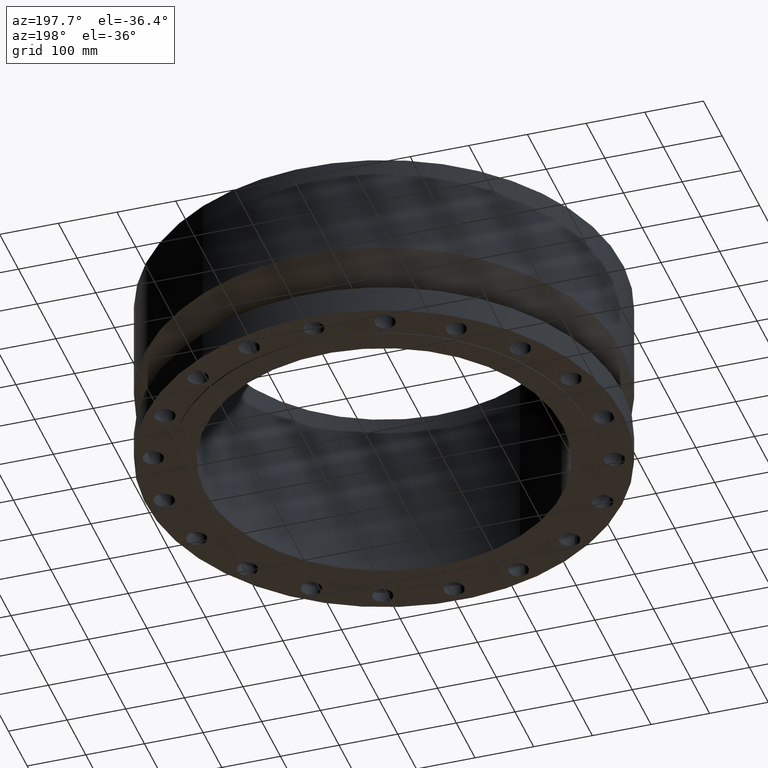
[diagram: clean part render]
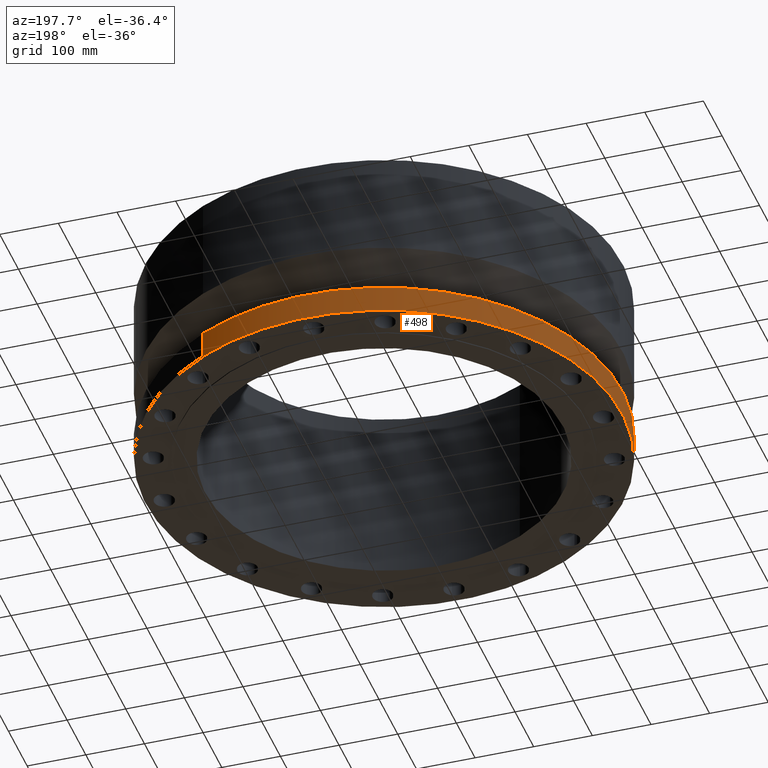
[diagram: same view with one face highlighted and labeled with its STEP entity id]
A machine part, auxiliary view. The second image highlights one B-rep face of the part: STEP entity #498.
In plain terms, the highlighted cylindrical surface (partial cylindrical patch) has radius 406.4 mm, axis along (0, 0, -1).
Its self-contained STEP definition (entity closure, byte-faithful):
#82=AXIS2_PLACEMENT_3D('Circle Axis2P3D',#80,#81,$) ;
#471=AXIS2_PLACEMENT_3D('Cylinder Axis2P3D',#468,#469,#470) ;
#482=AXIS2_PLACEMENT_3D('Circle Axis2P3D',#480,#481,$) ;
#80=CARTESIAN_POINT('Axis2P3D Location',(0.,0.,0.)) ;
#84=CARTESIAN_POINT('Vertex',(-7.6708086177,-14.0413209903,2.23792987641E-015)) ;
#86=CARTESIAN_POINT('Vertex',(7.6708086177,14.0413209903,2.23792987641E-015)) ;
#468=CARTESIAN_POINT('Axis2P3D Location',(0.,0.,5.93750000002)) ;
#473=CARTESIAN_POINT('Line Origine',(-7.6708086177,-14.0413209903,8.45744101199)) ;
#477=CARTESIAN_POINT('Vertex',(-7.6708086177,-14.0413209903,1.81750000001)) ;
#480=CARTESIAN_POINT('Axis2P3D Location',(0.,0.,1.81750000001)) ;
#484=CARTESIAN_POINT('Vertex',(7.6708086177,14.0413209903,1.81750000001)) ;
#487=CARTESIAN_POINT('Line Origine',(7.6708086177,14.0413209903,8.45744101199)) ;
#81=DIRECTION('Axis2P3D Direction',(0.,0.,-0.0393700787402)) ;
#469=DIRECTION('Axis2P3D Direction',(0.,0.,-0.0393700787402)) ;
#470=DIRECTION('Axis2P3D XDirection',(-0.0188750212049,-0.0345504945626,0.)) ;
#474=DIRECTION('Vector Direction',(0.,0.,-0.0393700787402)) ;
#481=DIRECTION('Axis2P3D Direction',(0.,0.,-0.0393700787402)) ;
#488=DIRECTION('Vector Direction',(0.,0.,-0.0393700787402)) ;
#475=VECTOR('Line Direction',#474,0.0393700787402) ;
#489=VECTOR('Line Direction',#488,0.0393700787402) ;
#493=ORIENTED_EDGE('',*,*,#88,.F.) ;
#494=ORIENTED_EDGE('',*,*,#479,.T.) ;
#495=ORIENTED_EDGE('',*,*,#486,.T.) ;
#496=ORIENTED_EDGE('',*,*,#491,.F.) ;
#498=ADVANCED_FACE('PartBody',(#497),#472,.T.) ;
#83=CIRCLE('generated circle',#82,16.0000000001) ;
#483=CIRCLE('generated circle',#482,16.0000000001) ;
#472=CYLINDRICAL_SURFACE('generated cylinder',#471,16.0000000001) ;
#88=EDGE_CURVE('',#85,#87,#83,.T.) ;
#479=EDGE_CURVE('',#85,#478,#476,.F.) ;
#486=EDGE_CURVE('',#478,#485,#483,.T.) ;
#491=EDGE_CURVE('',#87,#485,#490,.F.) ;
#492=EDGE_LOOP('',(#493,#494,#495,#496)) ;
#497=FACE_OUTER_BOUND('',#492,.T.) ;
#476=LINE('Line',#473,#475) ;
#490=LINE('Line',#487,#489) ;
#85=VERTEX_POINT('',#84) ;
#87=VERTEX_POINT('',#86) ;
#478=VERTEX_POINT('',#477) ;
#485=VERTEX_POINT('',#484) ;